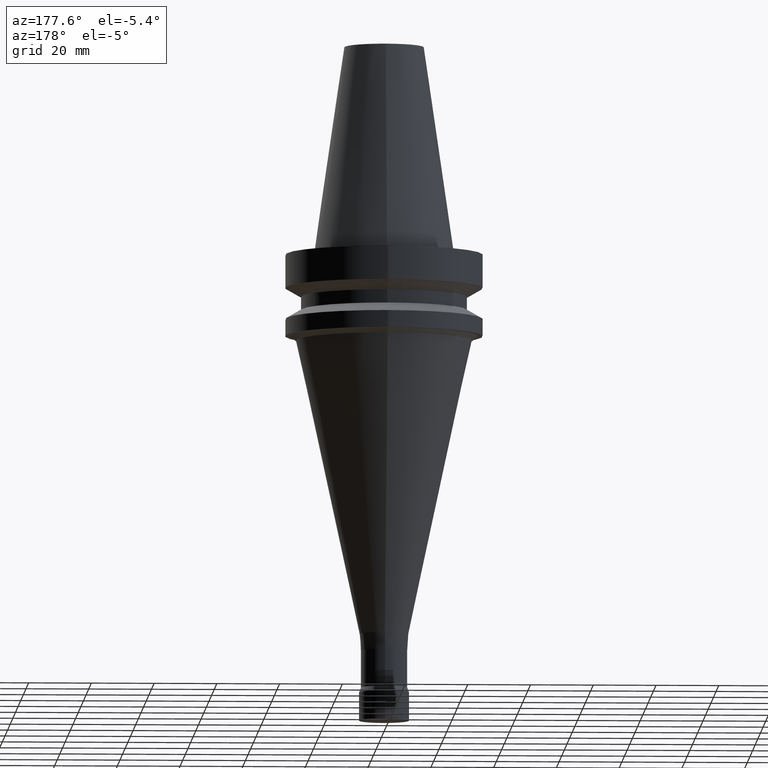
[diagram: clean part render]
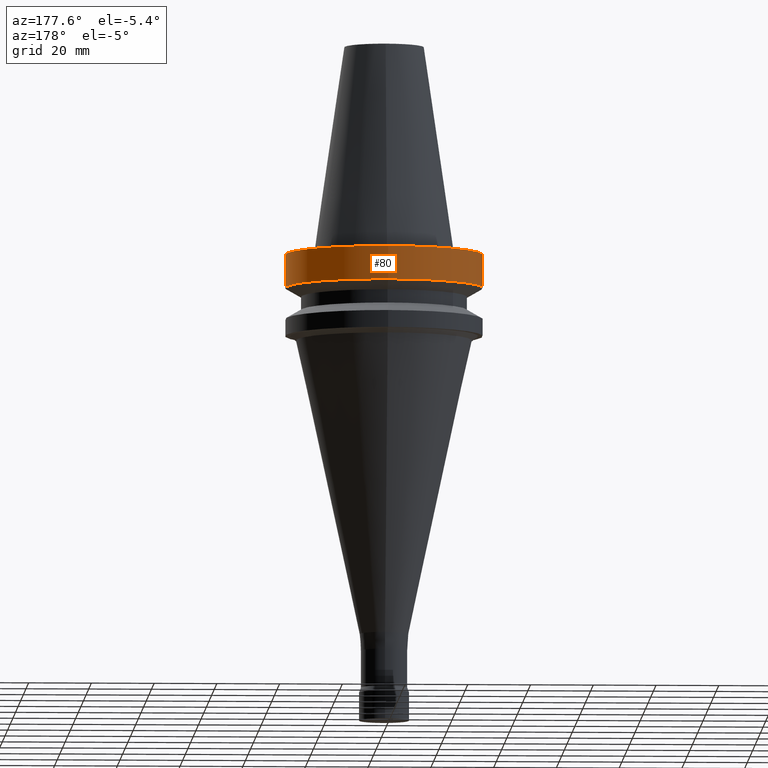
[diagram: same view with one face highlighted and labeled with its STEP entity id]
A machine part, auxiliary view. The second image highlights one B-rep face of the part: STEP entity #80.
In plain terms, the highlighted cylindrical surface (bore or boss wall) has radius 31.5 mm, axis along (-0, -0, 1).
Its self-contained STEP definition (entity closure, byte-faithful):
#80=ADVANCED_FACE('',(#106,#107),#108,.T.);
#106=FACE_BOUND('',#155,.T.);
#107=FACE_BOUND('',#156,.T.);
#108=CYLINDRICAL_SURFACE('',#157,31.5);
#155=EDGE_LOOP('',(#214));
#156=EDGE_LOOP('',(#215));
#157=AXIS2_PLACEMENT_3D('',#216,#217,#218);
#214=ORIENTED_EDGE('',*,*,#279,.F.);
#215=ORIENTED_EDGE('',*,*,#278,.T.);
#216=CARTESIAN_POINT('',(3.85763741731417E-016,7.71527483462834E-016,-6.30000000000001));
#217=DIRECTION('',(-6.12323399573677E-017,-1.22464679914735E-016,1.0));
#218=DIRECTION('',(-1.23259516440783E-032,1.0,1.22464679914735E-016));
#278=EDGE_CURVE('',#298,#298,#299,.T.);
#279=EDGE_CURVE('',#300,#300,#301,.T.);
#298=VERTEX_POINT('',#330);
#299=CIRCLE('',#331,31.5);
#300=VERTEX_POINT('',#332);
#301=CIRCLE('',#333,31.5);
#330=CARTESIAN_POINT('',(6.12323399573673E-017,31.5,-0.999999999999996));
#331=AXIS2_PLACEMENT_3D('',#366,#367,#368);
#332=CARTESIAN_POINT('',(7.10295143505464E-016,31.5,-11.6));
#333=AXIS2_PLACEMENT_3D('',#369,#370,#371);
#366=CARTESIAN_POINT('',(6.12323399573677E-017,1.22464679914735E-016,-1.0));
#367=DIRECTION('',(6.12323399573677E-017,1.22464679914735E-016,-1.0));
#368=DIRECTION('',(-1.23259516440783E-032,1.0,1.22464679914735E-016));
#369=CARTESIAN_POINT('',(7.10295143505464E-016,1.42059028701093E-015,-11.6));
#370=DIRECTION('',(6.12323399573677E-017,1.22464679914735E-016,-1.0));
#371=DIRECTION('',(-1.23259516440783E-032,1.0,1.22464679914735E-016));